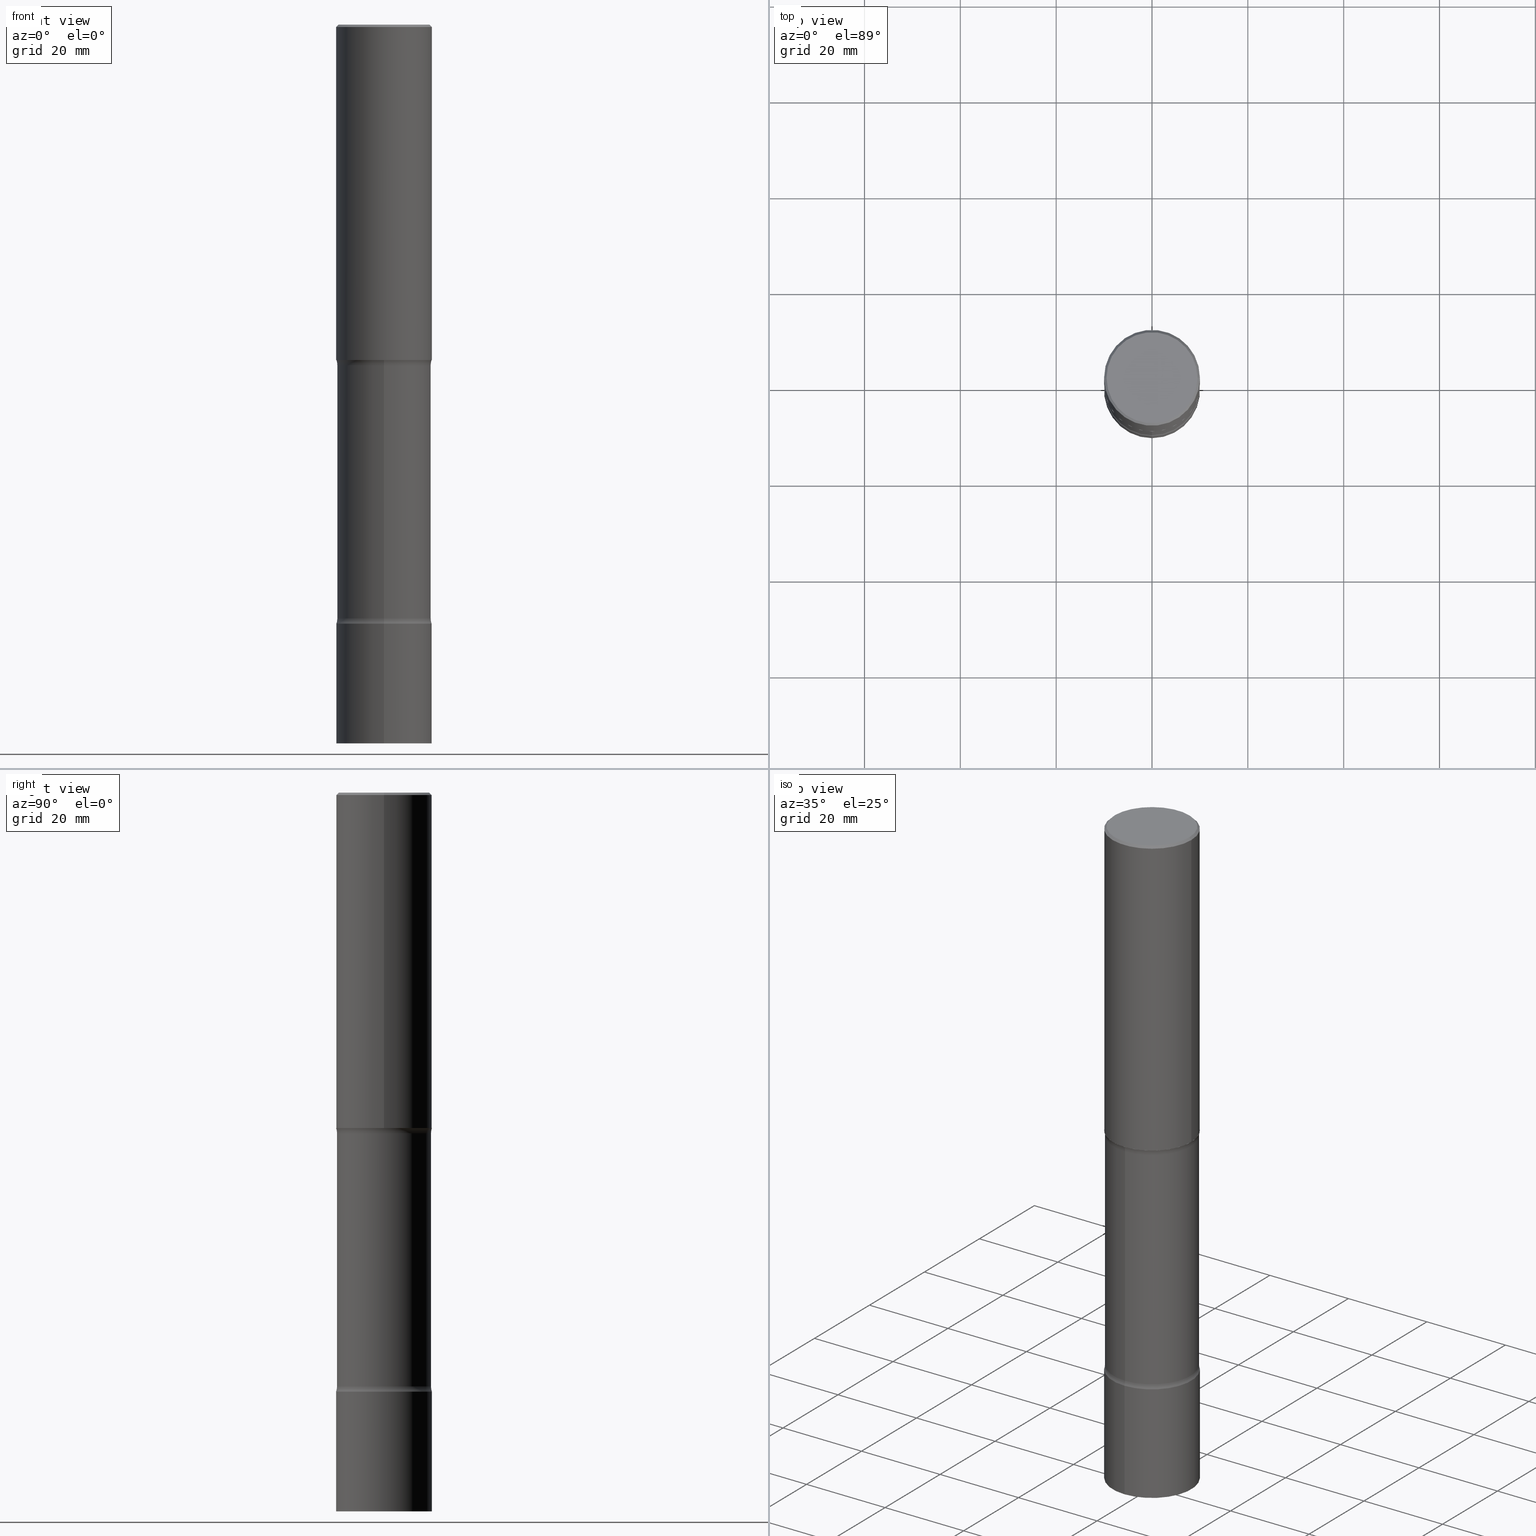
[diagram: canonical four-view strip — front | top / right | iso, engineering-drawing reading convention]
A machine part, canonical four-view strip (front | top / right | iso — engineering-drawing reading convention). The complete STEP part file that produces these views, byte-faithful:
ISO-10303-21;
HEADER;
FILE_DESCRIPTION (( 'STEP AP203' ),
    '1' );
FILE_NAME ('44614.STEP',
    '2024-03-11T13:36:18',
    ( '' ),
    ( '' ),
    'SwSTEP 2.0',
    'SolidWorks 2023',
    '' );
FILE_SCHEMA (( 'CONFIG_CONTROL_DESIGN' ));
ENDSEC;

DATA;
#1 = CARTESIAN_POINT ( 'NONE',  ( 0.000000000000000000, 0.000000000000000000, 0.000000000000000000 ) ) ;
#2 = CARTESIAN_POINT ( 'NONE',  ( 1.191686275506216771E-28, -1.705269145117238333E-14, -4.878553194726920950 ) ) ;
#3 = EDGE_LOOP ( 'NONE', ( #216, #498 ) ) ;
#4 = CALENDAR_DATE ( 2024, 11, 3 ) ;
#5 = DIRECTION ( 'NONE',  ( 2.624012579823737835E-29, -3.235796492912163733E-15, -1.000000000000000000 ) ) ;
#6 = CIRCLE ( 'NONE', #213, 0.3937000000000000499 ) ;
#7 = AXIS2_PLACEMENT_3D ( 'NONE', #267, #347, #385 ) ;
#8 = CARTESIAN_POINT ( 'NONE',  ( -2.675251194230947803E-15, -0.3862000000000107014, -2.798546805273079308 ) ) ;
#9 = DIRECTION ( 'NONE',  ( -2.445468806185136597E-29, 3.491481338843145583E-15, 1.000000000000000000 ) ) ;
#10 = CC_DESIGN_DATE_AND_TIME_ASSIGNMENT ( #507, #351, ( #379 ) ) ;
#11 = DIRECTION ( 'NONE',  ( -1.000000000000000000, 6.982962677686266711E-15, 0.000000000000000000 ) ) ;
#12 = ADVANCED_FACE ( 'NONE', ( #83 ), #76, .F. ) ;
#13 = AXIS2_PLACEMENT_3D ( 'NONE', #119, #398, #157 ) ;
#14 = DIRECTION ( 'NONE',  ( 2.624012579823737835E-29, -3.235796492912163733E-15, -1.000000000000000000 ) ) ;
#15 = ORIENTED_EDGE ( 'NONE', *, *, #272, .T. ) ;
#16 = FACE_OUTER_BOUND ( 'NONE', #348, .T. ) ;
#17 = ORIENTED_EDGE ( 'NONE', *, *, #430, .T. ) ;
#18 = CARTESIAN_POINT ( 'NONE',  ( 0.3936999999999996613, -2.770807688499512973E-15, -0.02000000000000010103 ) ) ;
#19 = VECTOR ( 'NONE', #438, 39.37007874015748143 ) ;
#20 = AXIS2_PLACEMENT_3D ( 'NONE', #331, #406, #365 ) ;
#21 = VECTOR ( 'NONE', #457, 39.37007874015748143 ) ;
#22 = DIRECTION ( 'NONE',  ( -2.445468806185136877E-29, 3.491481338843145188E-15, 1.000000000000000000 ) ) ;
#23 = ORIENTED_EDGE ( 'NONE', *, *, #395, .T. ) ;
#24 = CARTESIAN_POINT ( 'NONE',  ( 1.443466886683462122E-28, -2.062903499234540787E-14, -5.905499999999999972 ) ) ;
#25 = ORIENTED_EDGE ( 'NONE', *, *, #206, .F. ) ;
#26 = LINE ( 'NONE', #172, #21 ) ;
#27 = ORIENTED_EDGE ( 'NONE', *, *, #60, .F. ) ;
#28 = EDGE_CURVE ( 'NONE', #423, #492, #403, .T. ) ;
#29 = DIRECTION ( 'NONE',  ( -6.982962677686265133E-15, -1.000000000000000000, 3.493190245084312098E-15 ) ) ;
#30 = CLOSED_SHELL ( 'NONE', ( #343, #342, #447, #228 ) ) ;
#31 = AXIS2_PLACEMENT_3D ( 'NONE', #92, #369, #413 ) ;
#32 = VERTEX_POINT ( 'NONE', #393 ) ;
#33 = PERSON_AND_ORGANIZATION_ROLE ( 'design_supplier' ) ;
#34 = ORIENTED_EDGE ( 'NONE', *, *, #187, .F. ) ;
#35 = DIRECTION ( 'NONE',  ( -6.982962677686265922E-15, -1.000000000000000000, 3.235796492912164127E-15 ) ) ;
#36 = PERSON_AND_ORGANIZATION ( #87, #462 ) ;
#37 = LOCAL_TIME ( 9, 36, 18.00000000000000000, #367 ) ;
#38 = DIRECTION ( 'NONE',  ( 6.982962677686265133E-15, 1.000000000000000000, -2.775563112689116301E-15 ) ) ;
#39 = AXIS2_PLACEMENT_3D ( 'NONE', #158, #156, #188 ) ;
#40 = DIRECTION ( 'NONE',  ( 2.624012579823737835E-29, -3.235796492912163733E-15, -1.000000000000000000 ) ) ;
#41 = ADVANCED_FACE ( 'NONE', ( #465 ), #437, .F. ) ;
#42 = ORIENTED_EDGE ( 'NONE', *, *, #272, .F. ) ;
#43 =( NAMED_UNIT ( * ) PLANE_ANGLE_UNIT ( ) SI_UNIT ( $, .RADIAN. ) );
#44 = DIRECTION ( 'NONE',  ( 2.624012579823737835E-29, -3.235796492912163733E-15, -1.000000000000000000 ) ) ;
#45 = CARTESIAN_POINT ( 'NONE',  ( 1.443466886683462122E-28, -2.062903499234540787E-14, -5.905499999999999972 ) ) ;
#46 = VECTOR ( 'NONE', #326, 39.37007874015748143 ) ;
#47 = CARTESIAN_POINT ( 'NONE',  ( 2.797406750687658754E-15, 0.3936999999999828970, -4.921200000000002461 ) ) ;
#48 = SHAPE_DEFINITION_REPRESENTATION ( #238, #355 ) ;
#49 = CARTESIAN_POINT ( 'NONE',  ( 3.569690520833339777E-15, 0.5111999999999831124, -4.878553194726922726 ) ) ;
#50 = VERTEX_POINT ( 'NONE', #436 ) ;
#51 = CC_DESIGN_SECURITY_CLASSIFICATION ( #93, ( #306 ) ) ;
#52 = CIRCLE ( 'NONE', #427, 0.3862000000000004318 ) ;
#53 = AXIS2_PLACEMENT_3D ( 'NONE', #244, #356, #359 ) ;
#54 = CARTESIAN_POINT ( 'NONE',  ( 0.3936999999999998279, -2.749192406205082033E-15, 1.919750796630859051E-29 ) ) ;
#55 = ORIENTED_EDGE ( 'NONE', *, *, #257, .F. ) ;
#56 = CARTESIAN_POINT ( 'NONE',  ( 2.696820186122502796E-15, 0.3861999999999900512, -2.798546805273081528 ) ) ;
#57 = DIRECTION ( 'NONE',  ( -2.445468806185136597E-29, 3.491481338843145583E-15, 1.000000000000000000 ) ) ;
#58 = ORIENTED_EDGE ( 'NONE', *, *, #499, .T. ) ;
#59 = AXIS2_PLACEMENT_3D ( 'NONE', #49, #332, #449 ) ;
#60 = EDGE_CURVE ( 'NONE', #161, #182, #475, .T. ) ;
#61 = CIRCLE ( 'NONE', #247, 0.3936999999999996613 ) ;
#62 = CARTESIAN_POINT ( 'NONE',  ( 4.890937612370298557E-31, -6.982962677686327354E-17, -0.02000000000000010103 ) ) ;
#63 = VERTEX_POINT ( 'NONE', #240 ) ;
#64 = DIRECTION ( 'NONE',  ( 1.000000000000000000, -6.982962677686267499E-15, 0.000000000000000000 ) ) ;
#65 = ADVANCED_FACE ( 'NONE', ( #242 ), #151, .F. ) ;
#66 = VERTEX_POINT ( 'NONE', #8 ) ;
#67 = ADVANCED_FACE ( 'NONE', ( #273 ), #231, .F. ) ;
#68 = LINE ( 'NONE', #143, #441 ) ;
#69 = ORIENTED_EDGE ( 'NONE', *, *, #206, .T. ) ;
#70 = DIRECTION ( 'NONE',  ( 6.982962677686265922E-15, 1.000000000000000000, -3.235796492912163733E-15 ) ) ;
#71 = VECTOR ( 'NONE', #372, 39.37007874015748143 ) ;
#72 = VERTEX_POINT ( 'NONE', #122 ) ;
#73 = COORDINATED_UNIVERSAL_TIME_OFFSET ( 5, 0, .BEHIND. ) ;
#74 = FACE_OUTER_BOUND ( 'NONE', #415, .T. ) ;
#75 =( LENGTH_UNIT ( ) NAMED_UNIT ( * ) SI_UNIT ( $, .METRE. ) );
#76 = PLANE ( 'NONE',  #13 ) ;
#77 = EDGE_CURVE ( 'NONE', #490, #445, #6, .T. ) ;
#78 = PERSON_AND_ORGANIZATION_ROLE ( 'design_owner' ) ;
#79 = CC_DESIGN_APPROVAL ( #408, ( #93 ) ) ;
#80 = ORIENTED_EDGE ( 'NONE', *, *, #28, .T. ) ;
#81 = COORDINATED_UNIVERSAL_TIME_OFFSET ( 5, 0, .BEHIND. ) ;
#82 = DATE_AND_TIME ( #4, #478 ) ;
#83 = FACE_OUTER_BOUND ( 'NONE', #271, .T. ) ;
#84 = CARTESIAN_POINT ( 'NONE',  ( 4.890937612370298557E-31, -6.982962677686327354E-17, -0.02000000000000010103 ) ) ;
#85 = AXIS2_PLACEMENT_3D ( 'NONE', #24, #454, #380 ) ;
#86 = AXIS2_PLACEMENT_3D ( 'NONE', #477, #124, #248 ) ;
#87 = PERSON ( 'UNSPECIFIED', 'UNSPECIFIED', 'UNSPECIFIED', ('UNSPECIFIED'), ('UNSPECIFIED'), ('UNSPECIFIED') ) ;
#88 = CARTESIAN_POINT ( 'NONE',  ( 1.461158409090852594E-28, -2.037568232208236419E-14, -5.905500000000000860 ) ) ;
#89 = ORIENTED_EDGE ( 'NONE', *, *, #234, .T. ) ;
#90 = PERSON_AND_ORGANIZATION ( #87, #462 ) ;
#91 = FACE_OUTER_BOUND ( 'NONE', #137, .T. ) ;
#92 = CARTESIAN_POINT ( 'NONE',  ( 2.588755158344812931E-28, -4.227855084552603978E-15, -5.905500000000000860 ) ) ;
#93 = SECURITY_CLASSIFICATION ( '', '', #145 ) ;
#94 = CIRCLE ( 'NONE', #480, 0.3736999999999996436 ) ;
#95 = CIRCLE ( 'NONE', #264, 0.3937000000000005495 ) ;
#96 = CYLINDRICAL_SURFACE ( 'NONE', #487, 0.3936999999999998279 ) ;
#97 = DIRECTION ( 'NONE',  ( -2.445468806185136597E-29, 3.491481338843145583E-15, 1.000000000000000000 ) ) ;
#98 = EDGE_LOOP ( 'NONE', ( #420, #180, #69, #80 ) ) ;
#99 = EDGE_CURVE ( 'NONE', #201, #50, #236, .T. ) ;
#100 = CARTESIAN_POINT ( 'NONE',  ( -3.507086576460744569E-15, -0.5112000000000107569, -2.798546805273078864 ) ) ;
#101 = ORIENTED_EDGE ( 'NONE', *, *, #155, .T. ) ;
#102 = APPROVAL ( #502, 'UNSPECIFIED' ) ;
#103 = EDGE_CURVE ( 'NONE', #66, #266, #440, .T. ) ;
#104 = DIRECTION ( 'NONE',  ( -2.444275483334962976E-29, 3.493190245084312886E-15, 1.000000000000000000 ) ) ;
#105 = ORIENTED_EDGE ( 'NONE', *, *, #110, .F. ) ;
#106 = PLANE ( 'NONE',  #7 ) ;
#107 = EDGE_LOOP ( 'NONE', ( #166, #186, #425, #290 ) ) ;
#108 = CARTESIAN_POINT ( 'NONE',  ( 0.3936999999999996613, -2.770807688499512973E-15, -0.02000000000000010103 ) ) ;
#109 = ORIENTED_EDGE ( 'NONE', *, *, #395, .F. ) ;
#110 = EDGE_CURVE ( 'NONE', #492, #423, #52, .T. ) ;
#111 =( GEOMETRIC_REPRESENTATION_CONTEXT ( 3 ) GLOBAL_UNCERTAINTY_ASSIGNED_CONTEXT ( ( #255 ) ) GLOBAL_UNIT_ASSIGNED_CONTEXT ( ( #243, #43, #314 ) ) REPRESENTATION_CONTEXT ( 'NONE', 'WORKASPACE' ) );
#112 = AXIS2_PLACEMENT_3D ( 'NONE', #88, #414, #327 ) ;
#113 = CARTESIAN_POINT ( 'NONE',  ( 2.797406750687513998E-15, 0.3937000000000000499, -1.375268999489693910E-15 ) ) ;
#114 = DIRECTION ( 'NONE',  ( -2.445468806185136597E-29, 3.491481338843145583E-15, 1.000000000000000000 ) ) ;
#115 = EDGE_CURVE ( 'NONE', #182, #450, #297, .T. ) ;
#116 = DIRECTION ( 'NONE',  ( 6.860497997771531562E-15, 1.000000000000000000, 0.000000000000000000 ) ) ;
#117 = PERSON_AND_ORGANIZATION ( #87, #462 ) ;
#118 = CIRCLE ( 'NONE', #464, 0.1249999999999998335 ) ;
#119 = CARTESIAN_POINT ( 'NONE',  ( 6.739467482965615990E-29, -9.622173421717821235E-15, -2.755899999999998684 ) ) ;
#120 = CIRCLE ( 'NONE', #418, 0.3937000000000000499 ) ;
#121 = PERSON_AND_ORGANIZATION ( #87, #462 ) ;
#122 = CARTESIAN_POINT ( 'NONE',  ( -2.700978061722592088E-15, -0.3937000000000107636, -2.755899999999998684 ) ) ;
#123 = DIRECTION ( 'NONE',  ( 2.445468806185136597E-29, -3.491481338843145583E-15, -1.000000000000000000 ) ) ;
#124 = DIRECTION ( 'NONE',  ( 2.624012579823737835E-29, -3.235796492912163733E-15, -1.000000000000000000 ) ) ;
#125 = AXIS2_PLACEMENT_3D ( 'NONE', #446, #211, #288 ) ;
#126 = PLANE ( 'NONE',  #20 ) ;
#127 = MANIFOLD_SOLID_BREP ( 'Body-Move/Copy2[2]', #497 ) ;
#128 = CALENDAR_DATE ( 2024, 11, 3 ) ;
#129 = DIRECTION ( 'NONE',  ( 6.982962677686265922E-15, 1.000000000000000000, -3.235796492912163733E-15 ) ) ;
#130 = DATE_AND_TIME ( #128, #366 ) ;
#131 = CARTESIAN_POINT ( 'NONE',  ( -0.3736999999999996436, 2.644447966039786297E-15, 8.537024980182450727E-18 ) ) ;
#132 = CIRCLE ( 'NONE', #346, 0.3937000000000000499 ) ;
#133 = CIRCLE ( 'NONE', #378, 0.3937000000000000499 ) ;
#134 = CYLINDRICAL_SURFACE ( 'NONE', #439, 0.3937000000000000499 ) ;
#135 = ORIENTED_EDGE ( 'NONE', *, *, #495, .F. ) ;
#136 = DIRECTION ( 'NONE',  ( 1.000000000000000000, -6.982962677686266711E-15, 0.000000000000000000 ) ) ;
#137 = EDGE_LOOP ( 'NONE', ( #341, #224, #212, #315 ) ) ;
#138 = DIRECTION ( 'NONE',  ( 6.982962677686265922E-15, 1.000000000000000000, -2.829464519590119711E-15 ) ) ;
#139 = ORIENTED_EDGE ( 'NONE', *, *, #187, .T. ) ;
#140 = AXIS2_PLACEMENT_3D ( 'NONE', #320, #239, #35 ) ;
#141 = FACE_OUTER_BOUND ( 'NONE', #233, .T. ) ;
#142 = EDGE_LOOP ( 'NONE', ( #302, #412, #460, #377 ) ) ;
#143 = CARTESIAN_POINT ( 'NONE',  ( -2.649524326739221477E-15, -0.3862000000000207489, -5.905499999999999972 ) ) ;
#144 = EDGE_LOOP ( 'NONE', ( #268, #494 ) ) ;
#145 = SECURITY_CLASSIFICATION_LEVEL ( 'unclassified' ) ;
#146 = ORIENTED_EDGE ( 'NONE', *, *, #208, .F. ) ;
#147 = CIRCLE ( 'NONE', #421, 0.3862000000000003763 ) ;
#148 = DIRECTION ( 'NONE',  ( 2.624012579823737835E-29, -3.235796492912163733E-15, -1.000000000000000000 ) ) ;
#149 = VECTOR ( 'NONE', #318, 39.37007874015748143 ) ;
#150 = CIRCLE ( 'NONE', #352, 0.3736999999999996436 ) ;
#151 = PLANE ( 'NONE',  #140 ) ;
#152 = EDGE_CURVE ( 'NONE', #201, #357, #94, .T. ) ;
#153 = APPROVAL_ROLE ( '' ) ;
#154 = CARTESIAN_POINT ( 'NONE',  ( 2.797406750687646132E-15, 0.3936999999999793998, -5.905500000000000860 ) ) ;
#155 = EDGE_CURVE ( 'NONE', #161, #455, #132, .T. ) ;
#156 = DIRECTION ( 'NONE',  ( -2.444275483334962976E-29, 3.493190245084312886E-15, 1.000000000000000000 ) ) ;
#157 = DIRECTION ( 'NONE',  ( 1.000000000000000000, -6.982962677686265922E-15, 4.876176775795935793E-29 ) ) ;
#158 = CARTESIAN_POINT ( 'NONE',  ( 1.202876850858801992E-28, -1.719068783410892213E-14, -4.921200000000000685 ) ) ;
#159 = DIRECTION ( 'NONE',  ( 2.624012579823737835E-29, -3.235796492912163733E-15, -1.000000000000000000 ) ) ;
#160 = AXIS2_PLACEMENT_3D ( 'NONE', #337, #229, #70 ) ;
#161 = VERTEX_POINT ( 'NONE', #154 ) ;
#162 = CARTESIAN_POINT ( 'NONE',  ( 1.202876850858802217E-28, -1.719068783410892213E-14, -4.921200000000000685 ) ) ;
#163 = CC_DESIGN_PERSON_AND_ORGANIZATION_ASSIGNMENT ( #90, #295, ( #93 ) ) ;
#164 = DIRECTION ( 'NONE',  ( 1.000000000000000000, -6.982962677686266711E-15, 4.876176775795935793E-29 ) ) ;
#165 = EDGE_CURVE ( 'NONE', #445, #492, #118, .T. ) ;
#166 = ORIENTED_EDGE ( 'NONE', *, *, #308, .F. ) ;
#167 = ADVANCED_FACE ( 'NONE', ( #74 ), #471, .F. ) ;
#168 = DIRECTION ( 'NONE',  ( -6.982962677686269077E-15, -1.000000000000000000, 0.000000000000000000 ) ) ;
#169 = EDGE_CURVE ( 'NONE', #266, #63, #322, .T. ) ;
#170 = APPLICATION_CONTEXT ( 'configuration controlled 3d designs of mechanical parts and assemblies' ) ;
#171 = FACE_OUTER_BOUND ( 'NONE', #458, .T. ) ;
#172 = CARTESIAN_POINT ( 'NONE',  ( -2.749192406205082822E-15, -0.3937000000000000499, 1.375268999489693910E-15 ) ) ;
#173 = CONICAL_SURFACE ( 'NONE', #361, 0.3936999999999996613, 0.7853981633974471688 ) ;
#174 = LOCAL_TIME ( 9, 36, 18.00000000000000000, #461 ) ;
#175 = AXIS2_PLACEMENT_3D ( 'NONE', #400, #40, #354 ) ;
#176 = AXIS2_PLACEMENT_3D ( 'NONE', #422, #491, #64 ) ;
#177 = FACE_OUTER_BOUND ( 'NONE', #142, .T. ) ;
#178 = ORIENTED_EDGE ( 'NONE', *, *, #456, .T. ) ;
#179 = DIRECTION ( 'NONE',  ( 2.445468806185136597E-29, -3.491481338843145583E-15, -1.000000000000000000 ) ) ;
#180 = ORIENTED_EDGE ( 'NONE', *, *, #77, .F. ) ;
#181 = DIRECTION ( 'NONE',  ( 6.860497997771532351E-15, 1.000000000000000000, 0.000000000000000000 ) ) ;
#182 = VERTEX_POINT ( 'NONE', #47 ) ;
#183 = ADVANCED_FACE ( 'NONE', ( #171 ), #126, .F. ) ;
#184 = AXIS2_PLACEMENT_3D ( 'NONE', #401, #283, #429 ) ;
#185 = DIRECTION ( 'NONE',  ( -1.000000000000000000, 6.982962677686266711E-15, 0.000000000000000000 ) ) ;
#186 = ORIENTED_EDGE ( 'NONE', *, *, #291, .F. ) ;
#187 = EDGE_CURVE ( 'NONE', #72, #63, #221, .T. ) ;
#188 = DIRECTION ( 'NONE',  ( -6.982962677686265133E-15, -1.000000000000000000, 4.163344669033674845E-15 ) ) ;
#189 = ORIENTED_EDGE ( 'NONE', *, *, #103, .F. ) ;
#190 = ADVANCED_FACE ( 'NONE', ( #292 ), #96, .T. ) ;
#191 = MECHANICAL_CONTEXT ( 'NONE', #170, 'mechanical' ) ;
#192 = DIRECTION ( 'NONE',  ( 1.000000000000000000, -6.982962677686266711E-15, 4.876212485538980163E-29 ) ) ;
#193 = PRODUCT_RELATED_PRODUCT_CATEGORY ( 'detail', '', ( #394 ) ) ;
#194 = CC_DESIGN_APPROVAL ( #339, ( #306 ) ) ;
#195 = PERSON_AND_ORGANIZATION_ROLE ( 'creator' ) ;
#196 = AXIS2_PLACEMENT_3D ( 'NONE', #463, #198, #434 ) ;
#197 = CONICAL_SURFACE ( 'NONE', #448, 0.3936999999999996613, 0.7853981633974471688 ) ;
#198 = DIRECTION ( 'NONE',  ( 2.438088387897960049E-29, -3.491481338843145188E-15, -1.000000000000000000 ) ) ;
#199 = PERSON_AND_ORGANIZATION ( #87, #462 ) ;
#200 = CARTESIAN_POINT ( 'NONE',  ( 1.202876850858802217E-28, -1.719068783410892213E-14, -4.921200000000000685 ) ) ;
#201 = VERTEX_POINT ( 'NONE', #131 ) ;
#202 = PERSON_AND_ORGANIZATION ( #87, #462 ) ;
#203 = CARTESIAN_POINT ( 'NONE',  ( -0.3936999999999996613, 2.679362779428217552E-15, -0.02000000000000010103 ) ) ;
#204 = CARTESIAN_POINT ( 'NONE',  ( -3.507086576460688166E-15, -0.5112000000000171962, -4.878553194726919173 ) ) ;
#205 = AXIS2_PLACEMENT_3D ( 'NONE', #100, #376, #181 ) ;
#206 = EDGE_CURVE ( 'NONE', #490, #423, #402, .T. ) ;
#207 = FACE_OUTER_BOUND ( 'NONE', #98, .T. ) ;
#208 = EDGE_CURVE ( 'NONE', #266, #423, #485, .T. ) ;
#209 = CYLINDRICAL_SURFACE ( 'NONE', #125, 0.3936999999999998279 ) ;
#210 = CC_DESIGN_PERSON_AND_ORGANIZATION_ASSIGNMENT ( #36, #195, ( #379 ) ) ;
#211 = DIRECTION ( 'NONE',  ( -2.445468806185136597E-29, 3.491481338843145583E-15, 1.000000000000000000 ) ) ;
#212 = ORIENTED_EDGE ( 'NONE', *, *, #257, .T. ) ;
#213 = AXIS2_PLACEMENT_3D ( 'NONE', #200, #44, #38 ) ;
#214 = ADVANCED_FACE ( 'NONE', ( #91 ), #209, .T. ) ;
#215 = DIRECTION ( 'NONE',  ( -1.000000000000000000, 6.982962677686265922E-15, -4.883557194083112901E-29 ) ) ;
#216 = ORIENTED_EDGE ( 'NONE', *, *, #152, .T. ) ;
#217 = CARTESIAN_POINT ( 'NONE',  ( 6.462231063326994910E-29, -1.031744354522291555E-14, -2.798546805273080640 ) ) ;
#218 = DIRECTION ( 'NONE',  ( 1.000000000000000000, -6.982962677686267499E-15, 0.000000000000000000 ) ) ;
#219 = APPROVAL_PERSON_ORGANIZATION ( #199, #102, #237 ) ;
#220 = ORIENTED_EDGE ( 'NONE', *, *, #115, .F. ) ;
#221 = CIRCLE ( 'NONE', #263, 0.3937000000000005495 ) ;
#222 = TOROIDAL_SURFACE ( 'NONE', #86, 0.5112000000000000988, 0.1249999999999998335 ) ;
#223 = DIRECTION ( 'NONE',  ( -6.982962677686265133E-15, -1.000000000000000000, 3.493190245084312098E-15 ) ) ;
#224 = ORIENTED_EDGE ( 'NONE', *, *, #484, .T. ) ;
#225 = CC_DESIGN_PERSON_AND_ORGANIZATION_ASSIGNMENT ( #117, #78, ( #394 ) ) ;
#226 = DIRECTION ( 'NONE',  ( 1.000000000000000000, -6.982962677686266711E-15, 0.000000000000000000 ) ) ;
#227 = EDGE_LOOP ( 'NONE', ( #27, #101, #17, #220 ) ) ;
#228 = ADVANCED_FACE ( 'NONE', ( #246 ), #294, .T. ) ;
#229 = DIRECTION ( 'NONE',  ( 2.624012579823737835E-29, -3.235796492912163733E-15, -1.000000000000000000 ) ) ;
#230 = ORIENTED_EDGE ( 'NONE', *, *, #110, .T. ) ;
#231 = TOROIDAL_SURFACE ( 'NONE', #175, 0.5112000000000000988, 0.1249999999999998335 ) ;
#232 = CARTESIAN_POINT ( 'NONE',  ( -2.700978061722531740E-15, -0.3937000000000173139, -4.921199999999999797 ) ) ;
#233 = EDGE_LOOP ( 'NONE', ( #42, #426, #432, #304 ) ) ;
#234 = EDGE_CURVE ( 'NONE', #445, #490, #120, .T. ) ;
#235 = LENGTH_MEASURE_WITH_UNIT ( LENGTH_MEASURE( 0.02539999999999999897 ), #75 );
#236 = LINE ( 'NONE', #203, #149 ) ;
#237 = APPROVAL_ROLE ( '' ) ;
#238 = PRODUCT_DEFINITION_SHAPE ( 'NONE', 'NONE',  #379 ) ;
#239 = DIRECTION ( 'NONE',  ( -2.624012579823736714E-29, 3.235796492912164127E-15, 1.000000000000000000 ) ) ;
#240 = CARTESIAN_POINT ( 'NONE',  ( 2.749192406205151059E-15, 0.3936999999999903910, -2.755900000000000905 ) ) ;
#241 = APPROVAL_DATE_TIME ( #353, #102 ) ;
#242 = FACE_OUTER_BOUND ( 'NONE', #321, .T. ) ;
#243 =( CONVERSION_BASED_UNIT ( 'INCH', #235 ) LENGTH_UNIT ( ) NAMED_UNIT ( #466 ) );
#244 = CARTESIAN_POINT ( 'NONE',  ( 6.458899823021536649E-29, -1.032221407094275446E-14, -2.798546805273080640 ) ) ;
#245 = CIRCLE ( 'NONE', #85, 0.3937000000000000499 ) ;
#246 = FACE_OUTER_BOUND ( 'NONE', #144, .T. ) ;
#247 = AXIS2_PLACEMENT_3D ( 'NONE', #340, #303, #226 ) ;
#248 = DIRECTION ( 'NONE',  ( 6.982962677686265922E-15, 1.000000000000000000, -3.235796492912163733E-15 ) ) ;
#249 = CC_DESIGN_PERSON_AND_ORGANIZATION_ASSIGNMENT ( #474, #433, ( #306 ) ) ;
#250 = PERSON_AND_ORGANIZATION ( #87, #462 ) ;
#251 = CARTESIAN_POINT ( 'NONE',  ( 2.696820186122584443E-15, 0.3861999999999800037, -5.905500000000001748 ) ) ;
#252 = ORIENTED_EDGE ( 'NONE', *, *, #456, .F. ) ;
#253 = DIRECTION ( 'NONE',  ( 2.624012579823737835E-29, -3.235796492912163733E-15, -1.000000000000000000 ) ) ;
#254 = LOCAL_TIME ( 9, 36, 18.00000000000000000, #81 ) ;
#255 = UNCERTAINTY_MEASURE_WITH_UNIT (LENGTH_MEASURE( 1.000000000000000082E-05 ), #243, 'distance_accuracy_value', 'NONE');
#256 = CYLINDRICAL_SURFACE ( 'NONE', #112, 0.3862000000000003763 ) ;
#257 = EDGE_CURVE ( 'NONE', #32, #470, #442, .T. ) ;
#258 = DIRECTION ( 'NONE',  ( -2.444275483334962976E-29, 3.493190245084312886E-15, 1.000000000000000000 ) ) ;
#259 = ORIENTED_EDGE ( 'NONE', *, *, #208, .T. ) ;
#260 = FACE_OUTER_BOUND ( 'NONE', #227, .T. ) ;
#261 = EDGE_LOOP ( 'NONE', ( #58, #387 ) ) ;
#262 = ADVANCED_FACE ( 'NONE', ( #16 ), #256, .T. ) ;
#263 = AXIS2_PLACEMENT_3D ( 'NONE', #486, #444, #410 ) ;
#264 = AXIS2_PLACEMENT_3D ( 'NONE', #428, #148, #317 ) ;
#265 = FACE_OUTER_BOUND ( 'NONE', #107, .T. ) ;
#266 = VERTEX_POINT ( 'NONE', #56 ) ;
#267 = CARTESIAN_POINT ( 'NONE',  ( 1.203464108899829604E-28, -1.718227796471488830E-14, -4.921200000000000685 ) ) ;
#268 = ORIENTED_EDGE ( 'NONE', *, *, #309, .F. ) ;
#269 = CC_DESIGN_DATE_AND_TIME_ASSIGNMENT ( #363, #404, ( #93 ) ) ;
#270 = CARTESIAN_POINT ( 'NONE',  ( -2.087702828670439639E-46, 2.980686340760894400E-32, 8.537024980200822558E-18 ) ) ;
#271 = EDGE_LOOP ( 'NONE', ( #443, #345 ) ) ;
#272 = EDGE_CURVE ( 'NONE', #357, #470, #373, .T. ) ;
#273 = FACE_OUTER_BOUND ( 'NONE', #311, .T. ) ;
#274 = DIRECTION ( 'NONE',  ( -2.444275483334962976E-29, 3.493190245084312886E-15, 1.000000000000000000 ) ) ;
#275 = APPLICATION_CONTEXT ( 'configuration controlled 3d designs of mechanical parts and assemblies' ) ;
#276 = DIRECTION ( 'NONE',  ( 0.000000000000000000, 0.000000000000000000, 1.000000000000000000 ) ) ;
#277 = ORIENTED_EDGE ( 'NONE', *, *, #291, .T. ) ;
#278 = DIRECTION ( 'NONE',  ( 1.000000000000000000, 0.000000000000000000, 0.000000000000000000 ) ) ;
#279 = AXIS2_PLACEMENT_3D ( 'NONE', #325, #159, #319 ) ;
#280 = ADVANCED_FACE ( 'NONE', ( #476 ), #173, .T. ) ;
#281 = DIRECTION ( 'NONE',  ( -2.444275483334962976E-29, 3.493190245084312886E-15, 1.000000000000000000 ) ) ;
#282 = CARTESIAN_POINT ( 'NONE',  ( 2.749192406205203912E-15, 0.3936999999999828970, -4.921200000000001573 ) ) ;
#283 = DIRECTION ( 'NONE',  ( -2.444275483334962976E-29, 3.493190245084312886E-15, 1.000000000000000000 ) ) ;
#284 = ADVANCED_FACE ( 'NONE', ( #207 ), #222, .F. ) ;
#285 = CARTESIAN_POINT ( 'NONE',  ( 0.000000000000000000, 0.000000000000000000, 0.000000000000000000 ) ) ;
#286 = ADVANCED_FACE ( 'NONE', ( #364 ), #407, .T. ) ;
#287 = COORDINATED_UNIVERSAL_TIME_OFFSET ( 5, 0, .BEHIND. ) ;
#288 = DIRECTION ( 'NONE',  ( 1.000000000000000000, -6.982962677686266711E-15, 4.876176775795935793E-29 ) ) ;
#289 = VECTOR ( 'NONE', #22, 39.37007874015748143 ) ;
#290 = ORIENTED_EDGE ( 'NONE', *, *, #495, .T. ) ;
#291 = EDGE_CURVE ( 'NONE', #266, #66, #147, .T. ) ;
#292 = FACE_OUTER_BOUND ( 'NONE', #503, .T. ) ;
#293 = ORIENTED_EDGE ( 'NONE', *, *, #165, .T. ) ;
#294 = PLANE ( 'NONE',  #31 ) ;
#295 = PERSON_AND_ORGANIZATION_ROLE ( 'classification_officer' ) ;
#296 = DIRECTION ( 'NONE',  ( 6.982962677686265133E-15, 1.000000000000000000, -2.775563112689116301E-15 ) ) ;
#297 = CIRCLE ( 'NONE', #184, 0.3937000000000000499 ) ;
#298 = EDGE_LOOP ( 'NONE', ( #338, #15, #23, #381 ) ) ;
#299 = CIRCLE ( 'NONE', #205, 0.1250000000000000278 ) ;
#300 = MANIFOLD_SOLID_BREP ( 'Body-Move/Copy2[1]', #30 ) ;
#301 = DIRECTION ( 'NONE',  ( -2.445468806185136597E-29, 3.491481338843145583E-15, 1.000000000000000000 ) ) ;
#302 = ORIENTED_EDGE ( 'NONE', *, *, #309, .T. ) ;
#303 = DIRECTION ( 'NONE',  ( -2.445468806185136597E-29, 3.491481338843145583E-15, 1.000000000000000000 ) ) ;
#304 = ORIENTED_EDGE ( 'NONE', *, *, #411, .T. ) ;
#305 = DIRECTION ( 'NONE',  ( 6.982962677686265922E-15, 1.000000000000000000, -2.829464519590119711E-15 ) ) ;
#306 = PRODUCT_DEFINITION_FORMATION_WITH_SPECIFIED_SOURCE ( 'ANY', '', #394, .NOT_KNOWN. ) ;
#307 = ORIENTED_EDGE ( 'NONE', *, *, #374, .T. ) ;
#308 = EDGE_CURVE ( 'NONE', #66, #72, #299, .T. ) ;
#309 = EDGE_CURVE ( 'NONE', #455, #161, #245, .T. ) ;
#310 = CARTESIAN_POINT ( 'NONE',  ( 2.696820186122558016E-15, 0.3861999999999833899, -4.878553194726921838 ) ) ;
#311 = EDGE_LOOP ( 'NONE', ( #501, #293, #230, #25 ) ) ;
#312 = DIRECTION ( 'NONE',  ( 2.624012579823737835E-29, -3.235796492912164127E-15, -1.000000000000000000 ) ) ;
#313 = ORIENTED_EDGE ( 'NONE', *, *, #77, .T. ) ;
#314 =( NAMED_UNIT ( * ) SI_UNIT ( $, .STERADIAN. ) SOLID_ANGLE_UNIT ( ) );
#315 = ORIENTED_EDGE ( 'NONE', *, *, #411, .F. ) ;
#316 = CIRCLE ( 'NONE', #482, 0.3936999999999996613 ) ;
#317 = DIRECTION ( 'NONE',  ( 6.982962677686265922E-15, 1.000000000000000000, -2.775563112689112751E-15 ) ) ;
#318 = DIRECTION ( 'NONE',  ( -0.7071067811865466846, 2.468850131082247989E-15, -0.7071067811865483499 ) ) ;
#319 = DIRECTION ( 'NONE',  ( 6.982962677686265922E-15, 1.000000000000000000, -2.829464519590119317E-15 ) ) ;
#320 = CARTESIAN_POINT ( 'NONE',  ( 1.203464108899829604E-28, -1.718227796471488830E-14, -4.921200000000000685 ) ) ;
#321 = EDGE_LOOP ( 'NONE', ( #313, #89 ) ) ;
#322 = CIRCLE ( 'NONE', #388, 0.1250000000000000278 ) ;
#323 = APPROVAL_DATE_TIME ( #82, #339 ) ;
#324 = AXIS2_PLACEMENT_3D ( 'NONE', #1, #276, #278 ) ;
#325 = CARTESIAN_POINT ( 'NONE',  ( 1.191686275506216771E-28, -1.705269145117238333E-14, -4.878553194726920950 ) ) ;
#326 = DIRECTION ( 'NONE',  ( 0.7071067811865466846, -7.319954787623252890E-15, -0.7071067811865483499 ) ) ;
#327 = DIRECTION ( 'NONE',  ( 6.982962677686265922E-15, 1.000000000000000000, -2.829464519590119711E-15 ) ) ;
#328 = CALENDAR_DATE ( 2024, 11, 3 ) ;
#329 = CARTESIAN_POINT ( 'NONE',  ( 1.461158409090852594E-28, -2.037568232208236419E-14, -5.905500000000000860 ) ) ;
#330 = ORIENTED_EDGE ( 'NONE', *, *, #28, .F. ) ;
#331 = CARTESIAN_POINT ( 'NONE',  ( 1.398077560322116066E-29, -1.727134780397775746E-14, -2.755899999999999572 ) ) ;
#332 = DIRECTION ( 'NONE',  ( -1.000000000000000000, 6.982962677686265922E-15, -4.883557194083112901E-29 ) ) ;
#333 = CARTESIAN_POINT ( 'NONE',  ( 0.3736999999999996436, -2.667287895133365992E-15, 8.537024980219274507E-18 ) ) ;
#334 = APPROVAL_PERSON_ORGANIZATION ( #202, #339, #153 ) ;
#335 = AXIS2_PLACEMENT_3D ( 'NONE', #217, #14, #129 ) ;
#336 = CIRCLE ( 'NONE', #176, 0.3937000000000000499 ) ;
#337 = CARTESIAN_POINT ( 'NONE',  ( 6.462231063326994910E-29, -1.031744354522291555E-14, -2.798546805273080640 ) ) ;
#338 = ORIENTED_EDGE ( 'NONE', *, *, #489, .F. ) ;
#339 = APPROVAL ( #358, 'UNSPECIFIED' ) ;
#340 = CARTESIAN_POINT ( 'NONE',  ( 4.890937612370298557E-31, -6.982962677686327354E-17, -0.02000000000000010103 ) ) ;
#341 = ORIENTED_EDGE ( 'NONE', *, *, #374, .F. ) ;
#342 = ADVANCED_FACE ( 'NONE', ( #260 ), #493, .T. ) ;
#343 = ADVANCED_FACE ( 'NONE', ( #177 ), #134, .T. ) ;
#344 = CARTESIAN_POINT ( 'NONE',  ( 0.000000000000000000, 0.000000000000000000, 0.000000000000000000 ) ) ;
#345 = ORIENTED_EDGE ( 'NONE', *, *, #484, .F. ) ;
#346 = AXIS2_PLACEMENT_3D ( 'NONE', #45, #274, #508 ) ;
#347 = DIRECTION ( 'NONE',  ( 2.444275483334962696E-29, -3.493190245084312886E-15, -1.000000000000000000 ) ) ;
#348 = EDGE_LOOP ( 'NONE', ( #277, #178, #330, #146 ) ) ;
#349 = APPLICATION_PROTOCOL_DEFINITION ( 'international standard', 'config_control_design', 1994, #275 ) ;
#350 = ORIENTED_EDGE ( 'NONE', *, *, #386, .T. ) ;
#351 = DATE_TIME_ROLE ( 'creation_date' ) ;
#352 = AXIS2_PLACEMENT_3D ( 'NONE', #270, #97, #469 ) ;
#353 = DATE_AND_TIME ( #396, #254 ) ;
#354 = DIRECTION ( 'NONE',  ( 6.982962677686265922E-15, 1.000000000000000000, -3.235796492912163733E-15 ) ) ;
#355 = ADVANCED_BREP_SHAPE_REPRESENTATION ( '44614', ( #300, #127, #468, #324 ), #111 ) ;
#356 = DIRECTION ( 'NONE',  ( 2.624012579823737835E-29, -3.235796492912163733E-15, -1.000000000000000000 ) ) ;
#357 = VERTEX_POINT ( 'NONE', #333 ) ;
#358 = APPROVAL_STATUS ( 'not_yet_approved' ) ;
#359 = DIRECTION ( 'NONE',  ( 6.982962677686265922E-15, 1.000000000000000000, -2.829464519590119711E-15 ) ) ;
#360 = CLOSED_SHELL ( 'NONE', ( #262, #67, #167, #370, #183, #65, #284, #286 ) ) ;
#361 = AXIS2_PLACEMENT_3D ( 'NONE', #84, #123, #11 ) ;
#362 = DIRECTION ( 'NONE',  ( 1.000000000000000000, -6.860497997771530774E-15, 4.843930115905741518E-29 ) ) ;
#363 = DATE_AND_TIME ( #328, #37 ) ;
#364 = FACE_OUTER_BOUND ( 'NONE', #417, .T. ) ;
#365 = DIRECTION ( 'NONE',  ( 6.982962677686265922E-15, 1.000000000000000000, -3.235796492912164127E-15 ) ) ;
#366 = LOCAL_TIME ( 9, 36, 18.00000000000000000, #287 ) ;
#367 = COORDINATED_UNIVERSAL_TIME_OFFSET ( 5, 0, .BEHIND. ) ;
#368 = VECTOR ( 'NONE', #281, 39.37007874015748143 ) ;
#369 = DIRECTION ( 'NONE',  ( 2.444275483334962696E-29, -3.493190245084312886E-15, -1.000000000000000000 ) ) ;
#370 = ADVANCED_FACE ( 'NONE', ( #265 ), #405, .F. ) ;
#371 = APPROVAL_ROLE ( '' ) ;
#372 = DIRECTION ( 'NONE',  ( -2.445468806185136877E-29, 3.491481338843145188E-15, 1.000000000000000000 ) ) ;
#373 = LINE ( 'NONE', #18, #46 ) ;
#374 = EDGE_CURVE ( 'NONE', #391, #50, #451, .T. ) ;
#375 = CIRCLE ( 'NONE', #39, 0.3937000000000000499 ) ;
#376 = DIRECTION ( 'NONE',  ( 1.000000000000000000, -6.860497997771530774E-15, 4.843930115905741518E-29 ) ) ;
#377 = ORIENTED_EDGE ( 'NONE', *, *, #430, .F. ) ;
#378 = AXIS2_PLACEMENT_3D ( 'NONE', #488, #301, #218 ) ;
#379 = PRODUCT_DEFINITION ( 'UNKNOWN', '', #306, #504 ) ;
#380 = DIRECTION ( 'NONE',  ( -6.982962677686265133E-15, -1.000000000000000000, 2.775563112689116301E-15 ) ) ;
#381 = ORIENTED_EDGE ( 'NONE', *, *, #99, .F. ) ;
#382 = CC_DESIGN_PERSON_AND_ORGANIZATION_ASSIGNMENT ( #121, #33, ( #306 ) ) ;
#383 = CARTESIAN_POINT ( 'NONE',  ( 0.000000000000000000, 0.000000000000000000, 0.000000000000000000 ) ) ;
#384 = ORIENTED_EDGE ( 'NONE', *, *, #308, .T. ) ;
#385 = DIRECTION ( 'NONE',  ( 6.982962677686265922E-15, 1.000000000000000000, -3.493190245084312886E-15 ) ) ;
#386 = EDGE_CURVE ( 'NONE', #32, #391, #336, .T. ) ;
#387 = ORIENTED_EDGE ( 'NONE', *, *, #115, .T. ) ;
#388 = AXIS2_PLACEMENT_3D ( 'NONE', #505, #215, #168 ) ;
#389 = CC_DESIGN_APPROVAL ( #102, ( #379 ) ) ;
#390 = CARTESIAN_POINT ( 'NONE',  ( 6.458899823021536649E-29, -1.032221407094275446E-14, -2.798546805273080640 ) ) ;
#391 = VERTEX_POINT ( 'NONE', #459 ) ;
#392 = ADVANCED_FACE ( 'NONE', ( #141 ), #197, .T. ) ;
#393 = CARTESIAN_POINT ( 'NONE',  ( 0.3937000000000000499, -1.237136582792290445E-14, -2.755899999999998684 ) ) ;
#394 = PRODUCT ( '44614', '44614', '', ( #191 ) ) ;
#395 = EDGE_CURVE ( 'NONE', #470, #50, #316, .T. ) ;
#396 = CALENDAR_DATE ( 2024, 11, 3 ) ;
#397 = CARTESIAN_POINT ( 'NONE',  ( -2.087702828670439639E-46, 2.980686340760894400E-32, 8.537024980200822558E-18 ) ) ;
#398 = DIRECTION ( 'NONE',  ( -2.438088387897960049E-29, 3.491481338843145188E-15, 1.000000000000000000 ) ) ;
#399 = CALENDAR_DATE ( 2024, 11, 3 ) ;
#400 = CARTESIAN_POINT ( 'NONE',  ( 1.193034965701952775E-28, -1.703337743994265491E-14, -4.878553194726920950 ) ) ;
#401 = CARTESIAN_POINT ( 'NONE',  ( 1.202876850858801992E-28, -1.719068783410892213E-14, -4.921200000000000685 ) ) ;
#402 = CIRCLE ( 'NONE', #59, 0.1249999999999998335 ) ;
#403 = CIRCLE ( 'NONE', #279, 0.3862000000000004318 ) ;
#404 = DATE_TIME_ROLE ( 'classification_date' ) ;
#405 = TOROIDAL_SURFACE ( 'NONE', #160, 0.5112000000000004318, 0.1250000000000000555 ) ;
#406 = DIRECTION ( 'NONE',  ( 2.624012579823736714E-29, -3.235796492912164127E-15, -1.000000000000000000 ) ) ;
#407 = CYLINDRICAL_SURFACE ( 'NONE', #506, 0.3862000000000003763 ) ;
#408 = APPROVAL ( #409, 'UNSPECIFIED' ) ;
#409 = APPROVAL_STATUS ( 'not_yet_approved' ) ;
#410 = DIRECTION ( 'NONE',  ( 6.982962677686265922E-15, 1.000000000000000000, -2.775563112689112751E-15 ) ) ;
#411 = EDGE_CURVE ( 'NONE', #50, #470, #61, .T. ) ;
#412 = ORIENTED_EDGE ( 'NONE', *, *, #60, .T. ) ;
#413 = DIRECTION ( 'NONE',  ( 6.982962677686265922E-15, 1.000000000000000000, -3.493190245084312886E-15 ) ) ;
#414 = DIRECTION ( 'NONE',  ( 2.624012579823737835E-29, -3.235796492912163733E-15, -1.000000000000000000 ) ) ;
#415 = EDGE_LOOP ( 'NONE', ( #189, #384, #139, #453 ) ) ;
#416 = CARTESIAN_POINT ( 'NONE',  ( 4.890937612370298557E-31, -6.982962677686327354E-17, -0.02000000000000010103 ) ) ;
#417 = EDGE_LOOP ( 'NONE', ( #252, #473, #259, #105 ) ) ;
#418 = AXIS2_PLACEMENT_3D ( 'NONE', #162, #253, #296 ) ;
#419 = DIRECTION ( 'NONE',  ( 2.624012579823737835E-29, -3.235796492912163733E-15, -1.000000000000000000 ) ) ;
#420 = ORIENTED_EDGE ( 'NONE', *, *, #165, .F. ) ;
#421 = AXIS2_PLACEMENT_3D ( 'NONE', #390, #419, #138 ) ;
#422 = CARTESIAN_POINT ( 'NONE',  ( 6.739467482965615990E-29, -9.622173421717821235E-15, -2.755899999999998684 ) ) ;
#423 = VERTEX_POINT ( 'NONE', #310 ) ;
#424 = CARTESIAN_POINT ( 'NONE',  ( -2.749192406204962521E-15, -0.3937000000000172584, -4.921199999999998909 ) ) ;
#425 = ORIENTED_EDGE ( 'NONE', *, *, #169, .T. ) ;
#426 = ORIENTED_EDGE ( 'NONE', *, *, #152, .F. ) ;
#427 = AXIS2_PLACEMENT_3D ( 'NONE', #2, #5, #467 ) ;
#428 = CARTESIAN_POINT ( 'NONE',  ( 6.346994069495681077E-29, -1.018421768800621251E-14, -2.755900000000000016 ) ) ;
#429 = DIRECTION ( 'NONE',  ( -6.982962677686265133E-15, -1.000000000000000000, 4.163344669033674845E-15 ) ) ;
#430 = EDGE_CURVE ( 'NONE', #455, #450, #26, .T. ) ;
#431 = APPLICATION_PROTOCOL_DEFINITION ( 'international standard', 'config_control_design', 1994, #170 ) ;
#432 = ORIENTED_EDGE ( 'NONE', *, *, #99, .T. ) ;
#433 = PERSON_AND_ORGANIZATION_ROLE ( 'creator' ) ;
#434 = DIRECTION ( 'NONE',  ( -1.000000000000000000, 6.982962677686265922E-15, -4.876176775795935793E-29 ) ) ;
#435 = CARTESIAN_POINT ( 'NONE',  ( -2.675251194230890216E-15, -0.3862000000000175293, -4.878553194726920061 ) ) ;
#436 = CARTESIAN_POINT ( 'NONE',  ( -0.3936999999999996613, 2.679362779428217552E-15, -0.02000000000000010103 ) ) ;
#437 = PLANE ( 'NONE',  #196 ) ;
#438 = DIRECTION ( 'NONE',  ( 2.624012579823737835E-29, -3.235796492912164127E-15, -1.000000000000000000 ) ) ;
#439 = AXIS2_PLACEMENT_3D ( 'NONE', #383, #104, #29 ) ;
#440 = CIRCLE ( 'NONE', #53, 0.3862000000000003763 ) ;
#441 = VECTOR ( 'NONE', #312, 39.37007874015748143 ) ;
#442 = LINE ( 'NONE', #54, #71 ) ;
#443 = ORIENTED_EDGE ( 'NONE', *, *, #386, .F. ) ;
#444 = DIRECTION ( 'NONE',  ( 2.624012579823737835E-29, -3.235796492912163733E-15, -1.000000000000000000 ) ) ;
#445 = VERTEX_POINT ( 'NONE', #232 ) ;
#446 = CARTESIAN_POINT ( 'NONE',  ( 0.000000000000000000, 0.000000000000000000, 0.000000000000000000 ) ) ;
#447 = ADVANCED_FACE ( 'NONE', ( #452 ), #106, .F. ) ;
#448 = AXIS2_PLACEMENT_3D ( 'NONE', #416, #179, #185 ) ;
#449 = DIRECTION ( 'NONE',  ( -6.982962677686264344E-15, -1.000000000000000000, 0.000000000000000000 ) ) ;
#450 = VERTEX_POINT ( 'NONE', #424 ) ;
#451 = LINE ( 'NONE', #496, #289 ) ;
#452 = FACE_OUTER_BOUND ( 'NONE', #261, .T. ) ;
#453 = ORIENTED_EDGE ( 'NONE', *, *, #169, .F. ) ;
#454 = DIRECTION ( 'NONE',  ( -2.444275483334962976E-29, 3.493190245084312886E-15, 1.000000000000000000 ) ) ;
#455 = VERTEX_POINT ( 'NONE', #500 ) ;
#456 = EDGE_CURVE ( 'NONE', #66, #492, #68, .T. ) ;
#457 = DIRECTION ( 'NONE',  ( -2.444275483334962976E-29, 3.493190245084312886E-15, 1.000000000000000000 ) ) ;
#458 = EDGE_LOOP ( 'NONE', ( #135, #34 ) ) ;
#459 = CARTESIAN_POINT ( 'NONE',  ( -0.3937000000000000499, -2.048594773559825902E-15, -2.755899999999998684 ) ) ;
#460 = ORIENTED_EDGE ( 'NONE', *, *, #499, .F. ) ;
#461 = COORDINATED_UNIVERSAL_TIME_OFFSET ( 5, 0, .BEHIND. ) ;
#462 = ORGANIZATION ( 'UNSPECIFIED', 'UNSPECIFIED', '' ) ;
#463 = CARTESIAN_POINT ( 'NONE',  ( 2.609533152651354648E-15, 0.3736999999999996436, -1.300498063835581828E-15 ) ) ;
#464 = AXIS2_PLACEMENT_3D ( 'NONE', #204, #362, #116 ) ;
#465 = FACE_OUTER_BOUND ( 'NONE', #3, .T. ) ;
#466 = DIMENSIONAL_EXPONENTS ( 1.000000000000000000, 0.000000000000000000, 0.000000000000000000, 0.000000000000000000, 0.000000000000000000, 0.000000000000000000, 0.000000000000000000 ) ;
#467 = DIRECTION ( 'NONE',  ( 6.982962677686265922E-15, 1.000000000000000000, -2.829464519590119317E-15 ) ) ;
#468 = MANIFOLD_SOLID_BREP ( 'Body-Move/Copy2[4]', #360 ) ;
#469 = DIRECTION ( 'NONE',  ( 1.000000000000000000, -6.982962677686266711E-15, 4.876212485538980163E-29 ) ) ;
#470 = VERTEX_POINT ( 'NONE', #108 ) ;
#471 = TOROIDAL_SURFACE ( 'NONE', #335, 0.5112000000000004318, 0.1250000000000000555 ) ;
#472 = AXIS2_PLACEMENT_3D ( 'NONE', #344, #258, #223 ) ;
#473 = ORIENTED_EDGE ( 'NONE', *, *, #103, .T. ) ;
#474 = PERSON_AND_ORGANIZATION ( #87, #462 ) ;
#475 = LINE ( 'NONE', #113, #368 ) ;
#476 = FACE_OUTER_BOUND ( 'NONE', #298, .T. ) ;
#477 = CARTESIAN_POINT ( 'NONE',  ( 1.193034965701952775E-28, -1.703337743994265491E-14, -4.878553194726920950 ) ) ;
#478 = LOCAL_TIME ( 9, 36, 18.00000000000000000, #73 ) ;
#479 = APPROVAL_PERSON_ORGANIZATION ( #250, #408, #371 ) ;
#480 = AXIS2_PLACEMENT_3D ( 'NONE', #397, #114, #192 ) ;
#481 = APPROVAL_DATE_TIME ( #130, #408 ) ;
#482 = AXIS2_PLACEMENT_3D ( 'NONE', #62, #57, #136 ) ;
#483 = DIRECTION ( 'NONE',  ( 2.624012579823737835E-29, -3.235796492912163733E-15, -1.000000000000000000 ) ) ;
#484 = EDGE_CURVE ( 'NONE', #391, #32, #133, .T. ) ;
#485 = LINE ( 'NONE', #251, #19 ) ;
#486 = CARTESIAN_POINT ( 'NONE',  ( 6.346994069495681077E-29, -1.018421768800621251E-14, -2.755900000000000016 ) ) ;
#487 = AXIS2_PLACEMENT_3D ( 'NONE', #285, #9, #164 ) ;
#488 = CARTESIAN_POINT ( 'NONE',  ( 6.739467482965615990E-29, -9.622173421717821235E-15, -2.755899999999998684 ) ) ;
#489 = EDGE_CURVE ( 'NONE', #357, #201, #150, .T. ) ;
#490 = VERTEX_POINT ( 'NONE', #282 ) ;
#491 = DIRECTION ( 'NONE',  ( -2.445468806185136597E-29, 3.491481338843145583E-15, 1.000000000000000000 ) ) ;
#492 = VERTEX_POINT ( 'NONE', #435 ) ;
#493 = CYLINDRICAL_SURFACE ( 'NONE', #472, 0.3937000000000000499 ) ;
#494 = ORIENTED_EDGE ( 'NONE', *, *, #155, .F. ) ;
#495 = EDGE_CURVE ( 'NONE', #63, #72, #95, .T. ) ;
#496 = CARTESIAN_POINT ( 'NONE',  ( -0.3936999999999998279, 2.797406750687513209E-15, -1.936584745033355614E-29 ) ) ;
#497 = CLOSED_SHELL ( 'NONE', ( #190, #280, #392, #41, #12, #214 ) ) ;
#498 = ORIENTED_EDGE ( 'NONE', *, *, #489, .T. ) ;
#499 = EDGE_CURVE ( 'NONE', #450, #182, #375, .T. ) ;
#500 = CARTESIAN_POINT ( 'NONE',  ( -2.749192406204938855E-15, -0.3937000000000206446, -5.905499999999998195 ) ) ;
#501 = ORIENTED_EDGE ( 'NONE', *, *, #234, .F. ) ;
#502 = APPROVAL_STATUS ( 'not_yet_approved' ) ;
#503 = EDGE_LOOP ( 'NONE', ( #350, #307, #109, #55 ) ) ;
#504 = DESIGN_CONTEXT ( 'detailed design', #275, 'design' ) ;
#505 = CARTESIAN_POINT ( 'NONE',  ( 3.569690520833286924E-15, 0.5111999999999901068, -2.798546805273081972 ) ) ;
#506 = AXIS2_PLACEMENT_3D ( 'NONE', #329, #483, #305 ) ;
#507 = DATE_AND_TIME ( #399, #174 ) ;
#508 = DIRECTION ( 'NONE',  ( -6.982962677686265133E-15, -1.000000000000000000, 2.775563112689116301E-15 ) ) ;
ENDSEC;
END-ISO-10303-21;
